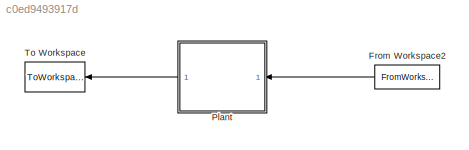
MODEL slx_c0ed9493917d
KIND model
CONFIG AbsTol = auto
CONFIG EnableMultiTasking = off
CONFIG FixedStep = Ts
CONFIG MaxStep = 0.1
CONFIG MinStep = auto
CONFIG RelTol = 1e-3
CONFIG SampleTimeConstraint = Unconstrained
CONFIG Solver = VariableStepAuto
CONFIG SolverName = VariableStepAuto
CONFIG StartTime = 0.0
CONFIG StopTime = 10.0
BLOCK [FromWorkspace] From Workspace2
  SampleTime = Ts
  VariableName = u
  ZeroCross = on
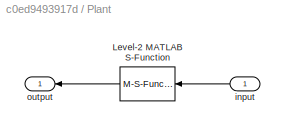
BLOCK [SubSystem] Plant 
  Ports = [1, 1]
  RequestExecContextInheritance = off
BLOCK [M-S-Function] Plant /Level-2 MATLAB S-Function
  FunctionName = virtualPlant
  Ports = [1, 1]
BLOCK [Inport] Plant /input
  IconDisplay = Port number
BLOCK [Outport] Plant /output
  IconDisplay = Port number
BLOCK [ToWorkspace] To Workspace
  FixptAsFi = on
  MaxDataPoints = inf
  Ports = [1]
  SampleTime = Ts
  SaveFormat = Structure With Time
  VariableName = y
LINE From Workspace2:1 -> Plant :1
LINE Plant /Level-2 MATLAB S-Function:1 -> Plant /output:1
LINE Plant /input:1 -> Plant /Level-2 MATLAB S-Function:1
LINE Plant :1 -> To Workspace:1
